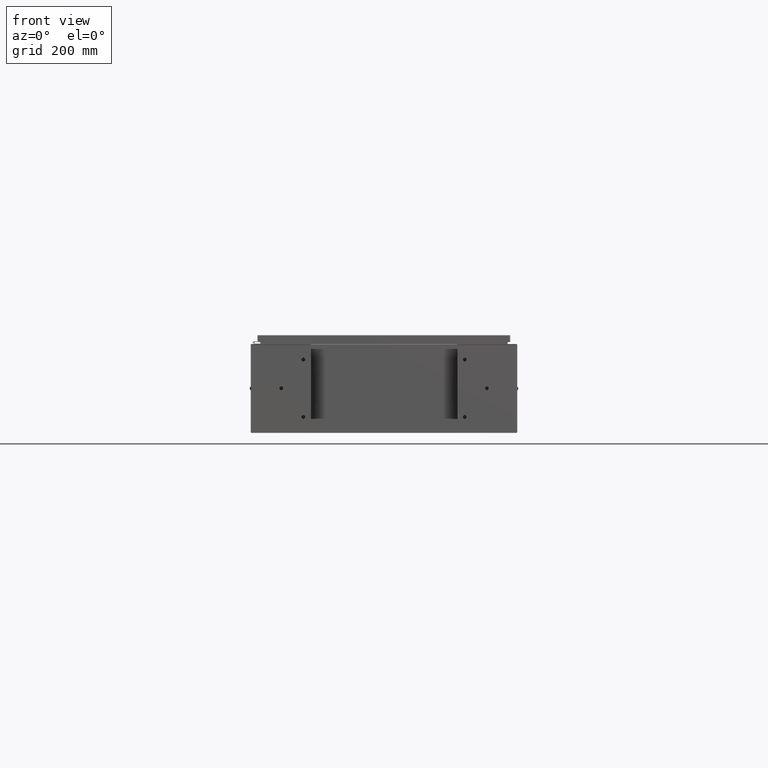
[diagram: clean part render]
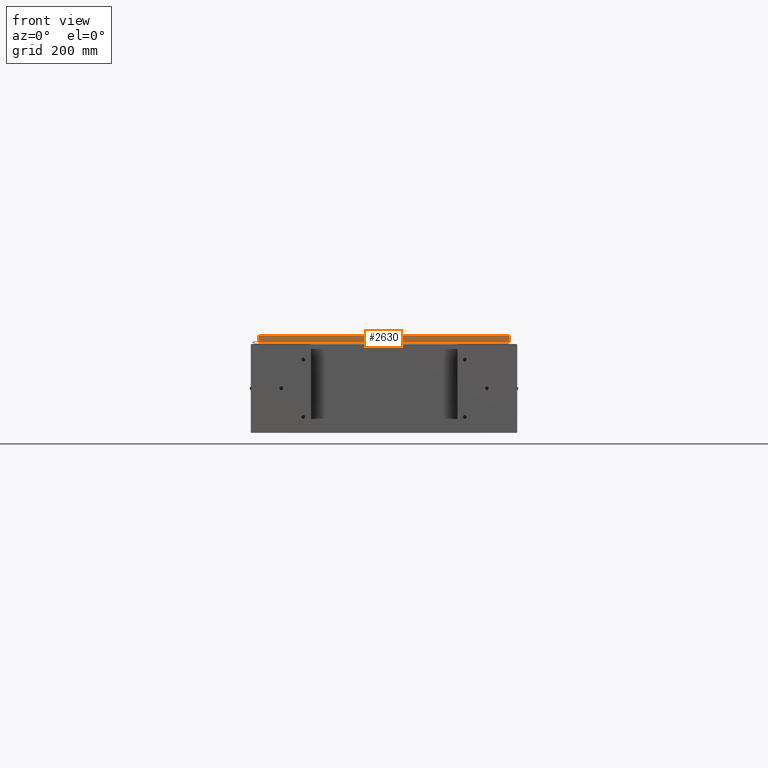
[diagram: same view with one face highlighted and labeled with its STEP entity id]
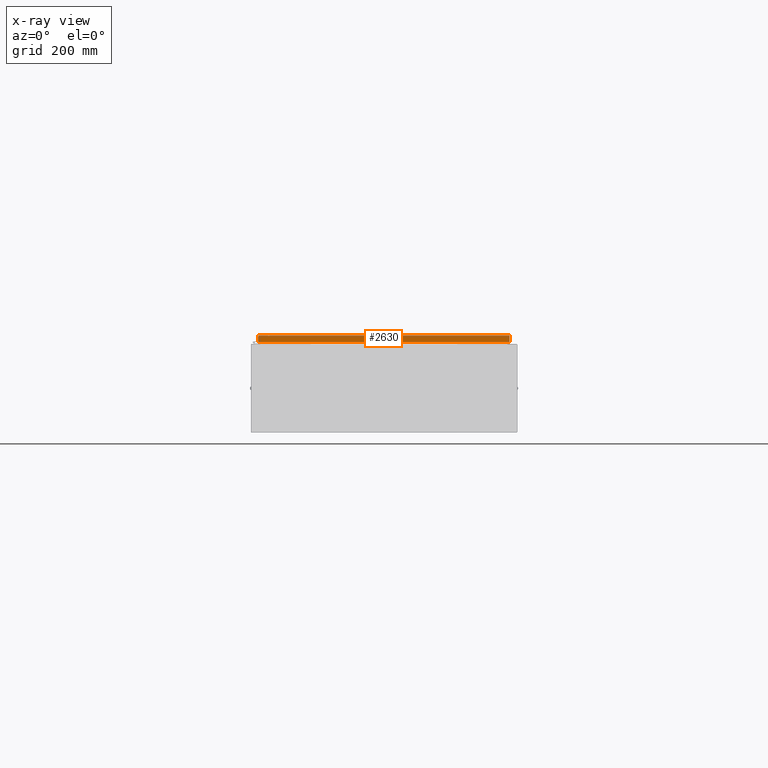
[diagram: x-ray of the same camera — body ghosted, the highlighted face saturated]
A machine part, front view. The second image highlights one B-rep face of the part: STEP entity #2630.
The next image is the same camera in x-ray: the body ghosted, the highlighted face saturated — about 0% of this face is hidden behind the body in this view.
In plain terms, the highlighted planar face has unit normal (-0, 1, -0).
Its self-contained STEP definition (entity closure, byte-faithful):
#1152 = EDGE_CURVE ( 'NONE', #37895, #17943, #12036, .T. ) ;
#2630 = ADVANCED_FACE ( 'NONE', ( #25152 ), #34213, .F. ) ;
#3334 = DIRECTION ( 'NONE',  ( 0.0000000000000000000, -5.064839849203732200E-015, -1.000000000000000000 ) ) ;
#3941 = DIRECTION ( 'NONE',  ( -1.000000000000000000, -8.758115402030106700E-047, 1.279703943630056600E-016 ) ) ;
#4279 = DIRECTION ( 'NONE',  ( 1.000000000000000000, 6.481495528880679500E-031, -3.349804276043092600E-045 ) ) ;
#4337 = VECTOR ( 'NONE', #3941, 39.37007874015748100 ) ;
#10480 = EDGE_CURVE ( 'NONE', #17943, #52096, #40532, .T. ) ;
#10538 = CARTESIAN_POINT ( 'NONE',  ( -16.98915786437627100, -35.09400000000000800, -0.08769999999999550400 ) ) ;
#12036 = LINE ( 'NONE', #59887, #44792 ) ;
#17010 = ORIENTED_EDGE ( 'NONE', *, *, #26729, .T. ) ;
#17716 = DIRECTION ( 'NONE',  ( -6.481495528880677800E-031, 1.000000000000000000, -5.064839849203732200E-015 ) ) ;
#17943 = VERTEX_POINT ( 'NONE', #32504 ) ;
#18645 = ORIENTED_EDGE ( 'NONE', *, *, #1152, .F. ) ;
#24739 = CARTESIAN_POINT ( 'NONE',  ( 16.98915786437627100, -35.09400000000001500, -0.9376999999999997600 ) ) ;
#25152 = FACE_OUTER_BOUND ( 'NONE', #42397, .T. ) ;
#26729 = EDGE_CURVE ( 'NONE', #37895, #53331, #63304, .T. ) ;
#32504 = CARTESIAN_POINT ( 'NONE',  ( 16.98915786437627100, -35.09400000000000800, -0.08769999999999550400 ) ) ;
#33321 = LINE ( 'NONE', #36513, #4337 ) ;
#34213 = PLANE ( 'NONE',  #45868 ) ;
#34266 = VECTOR ( 'NONE', #3334, 39.37007874015748100 ) ;
#35965 = CARTESIAN_POINT ( 'NONE',  ( -16.98915786437627100, -35.09400000000000800, 1.780063033239673800E-013 ) ) ;
#36513 = CARTESIAN_POINT ( 'NONE',  ( 17.07799999999999900, -35.09400000000001500, -0.9376999999999997600 ) ) ;
#37895 = VERTEX_POINT ( 'NONE', #10538 ) ;
#38434 = CARTESIAN_POINT ( 'NONE',  ( 2.274616040905385600E-029, -35.09400000000000800, 1.780063033239673800E-013 ) ) ;
#39359 = DIRECTION ( 'NONE',  ( 0.0000000000000000000, 5.064839849203732200E-015, 1.000000000000000000 ) ) ;
#40532 = LINE ( 'NONE', #52984, #68064 ) ;
#42397 = EDGE_LOOP ( 'NONE', ( #18645, #17010, #52694, #55480 ) ) ;
#44792 = VECTOR ( 'NONE', #4279, 39.37007874015748100 ) ;
#45868 = AXIS2_PLACEMENT_3D ( 'NONE', #38434, #17716, #39359 ) ;
#52096 = VERTEX_POINT ( 'NONE', #24739 ) ;
#52507 = DIRECTION ( 'NONE',  ( -0.0000000000000000000, -5.064839849203732200E-015, -1.000000000000000000 ) ) ;
#52694 = ORIENTED_EDGE ( 'NONE', *, *, #58389, .F. ) ;
#52984 = CARTESIAN_POINT ( 'NONE',  ( 16.98915786437627100, -35.09400000000000800, -0.07469999999999962800 ) ) ;
#53331 = VERTEX_POINT ( 'NONE', #59006 ) ;
#55480 = ORIENTED_EDGE ( 'NONE', *, *, #10480, .F. ) ;
#58389 = EDGE_CURVE ( 'NONE', #52096, #53331, #33321, .T. ) ;
#59006 = CARTESIAN_POINT ( 'NONE',  ( -16.98915786437627100, -35.09400000000001500, -0.9376999999999954300 ) ) ;
#59887 = CARTESIAN_POINT ( 'NONE',  ( 17.07799999999999900, -35.09400000000000800, -0.08769999999999550400 ) ) ;
#63304 = LINE ( 'NONE', #35965, #34266 ) ;
#68064 = VECTOR ( 'NONE', #52507, 39.37007874015748100 ) ;